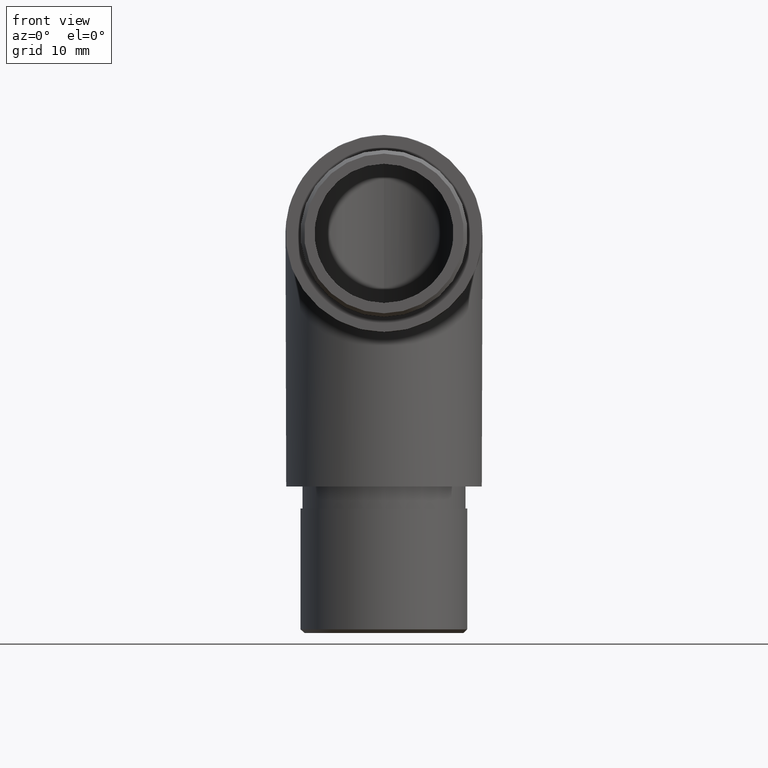
[diagram: clean part render]
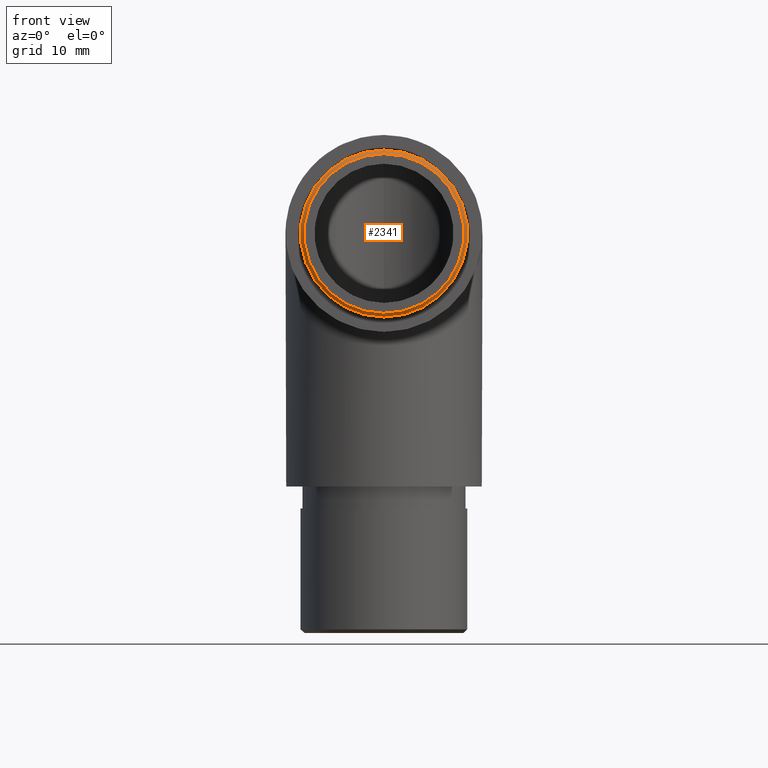
[diagram: same view with one face highlighted and labeled with its STEP entity id]
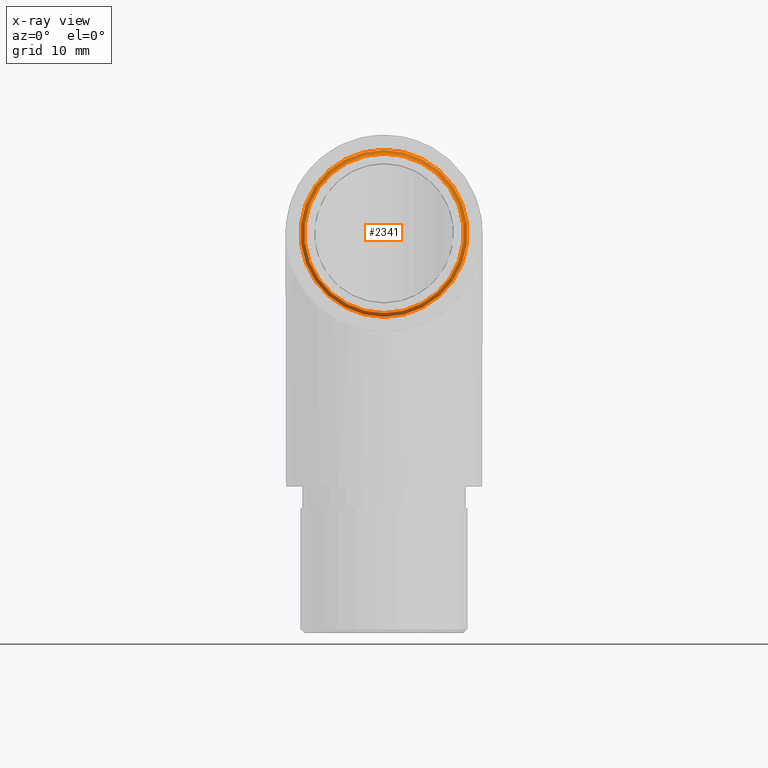
[diagram: x-ray of the same camera — body ghosted, the highlighted face saturated]
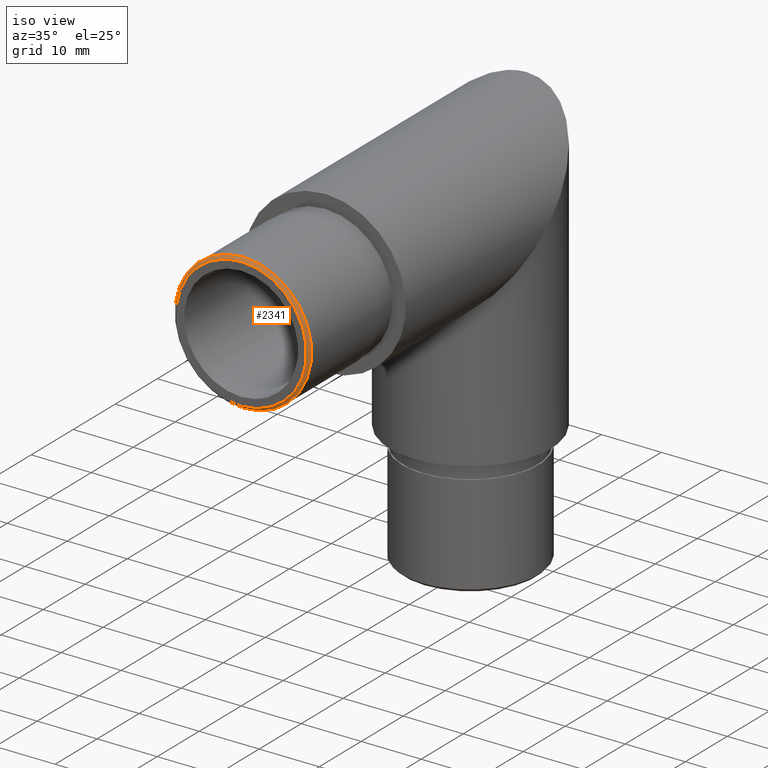
[diagram: same view with one face highlighted and labeled with its STEP entity id]
A machine part, front view. The second image highlights one B-rep face of the part: STEP entity #2341.
The next image is the same camera in x-ray: the body ghosted, the highlighted face saturated — about 0% of this face is hidden behind the body in this view.
A second angle (iso view) of the same face is appended — the face is thin or edge-on in the first view.
In plain terms, the highlighted conical surface has half-angle 45 deg.
Its self-contained STEP definition (entity closure, byte-faithful):
#1235 = ORIENTED_EDGE ( 'NONE', *, *, #10692, .F. ) ;
#1279 = DIRECTION ( 'NONE',  ( 0.0000000000000000000, 1.000000000000000000, 0.0000000000000000000 ) ) ;
#1546 = EDGE_CURVE ( 'NONE', #5126, #5126, #2132, .T. ) ;
#1831 = AXIS2_PLACEMENT_3D ( 'NONE', #2977, #1279, #3715 ) ;
#2132 = CIRCLE ( 'NONE', #3624, 10.89999999999999100 ) ;
#2341 = ADVANCED_FACE ( 'NONE', ( #2778, #6586 ), #10138, .T. ) ;
#2621 = CIRCLE ( 'NONE', #3240, 11.40000000000000000 ) ;
#2643 = DIRECTION ( 'NONE',  ( 0.0000000000000000000, 0.0000000000000000000, -1.000000000000000000 ) ) ;
#2778 = FACE_OUTER_BOUND ( 'NONE', #9975, .T. ) ;
#2874 = DIRECTION ( 'NONE',  ( 0.0000000000000000000, -1.000000000000000000, 0.0000000000000000000 ) ) ;
#2977 = CARTESIAN_POINT ( 'NONE',  ( 0.0000000000000000000, -20.00000000000000000, 0.0000000000000000000 ) ) ;
#3240 = AXIS2_PLACEMENT_3D ( 'NONE', #10182, #6764, #2643 ) ;
#3624 = AXIS2_PLACEMENT_3D ( 'NONE', #8722, #2874, #3716 ) ;
#3715 = DIRECTION ( 'NONE',  ( 0.0000000000000000000, 0.0000000000000000000, 1.000000000000000000 ) ) ;
#3716 = DIRECTION ( 'NONE',  ( 0.0000000000000000000, 0.0000000000000000000, -1.000000000000000000 ) ) ;
#3805 = CARTESIAN_POINT ( 'NONE',  ( 0.0000000000000000000, -20.00000000000000000, -10.89999999999999100 ) ) ;
#5126 = VERTEX_POINT ( 'NONE', #3805 ) ;
#5210 = ORIENTED_EDGE ( 'NONE', *, *, #1546, .F. ) ;
#5507 = VERTEX_POINT ( 'NONE', #10539 ) ;
#6586 = FACE_BOUND ( 'NONE', #8822, .T. ) ;
#6764 = DIRECTION ( 'NONE',  ( 0.0000000000000000000, 1.000000000000000000, 0.0000000000000000000 ) ) ;
#8722 = CARTESIAN_POINT ( 'NONE',  ( 0.0000000000000000000, -20.00000000000000000, 0.0000000000000000000 ) ) ;
#8822 = EDGE_LOOP ( 'NONE', ( #5210 ) ) ;
#9975 = EDGE_LOOP ( 'NONE', ( #1235 ) ) ;
#10138 = CONICAL_SURFACE ( 'NONE', #1831, 10.89999999999999100, 0.7853981633974500600 ) ;
#10182 = CARTESIAN_POINT ( 'NONE',  ( 0.0000000000000000000, -19.49999999999999300, 0.0000000000000000000 ) ) ;
#10539 = CARTESIAN_POINT ( 'NONE',  ( 0.0000000000000000000, -19.49999999999999300, -11.40000000000000000 ) ) ;
#10692 = EDGE_CURVE ( 'NONE', #5507, #5507, #2621, .T. ) ;